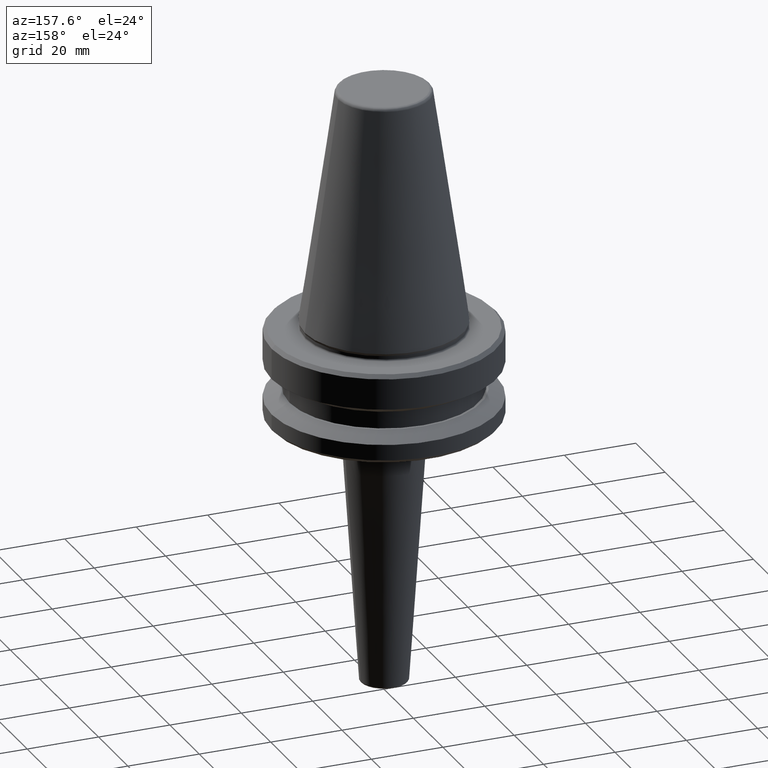
[diagram: clean part render]
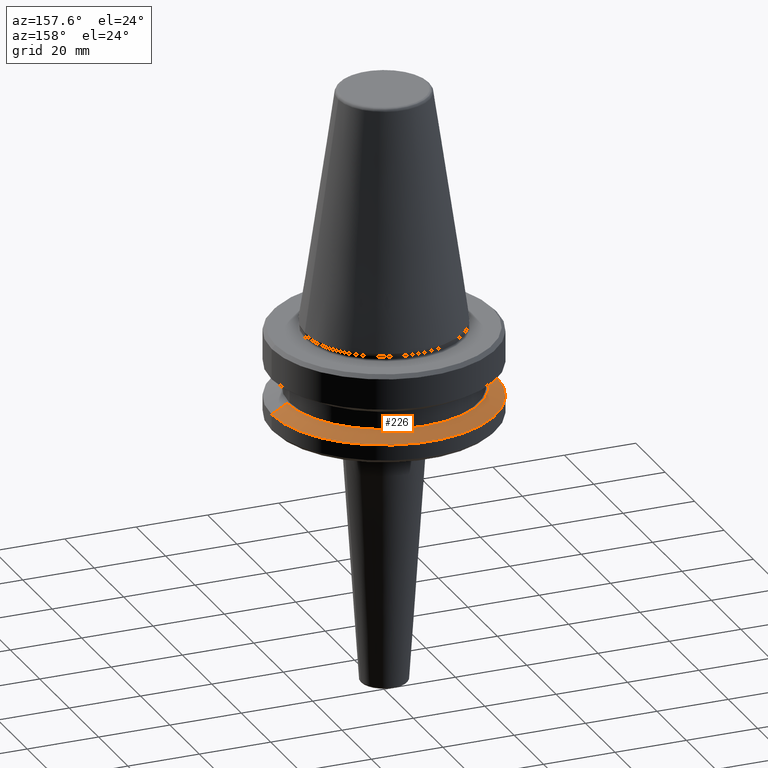
[diagram: same view with one face highlighted and labeled with its STEP entity id]
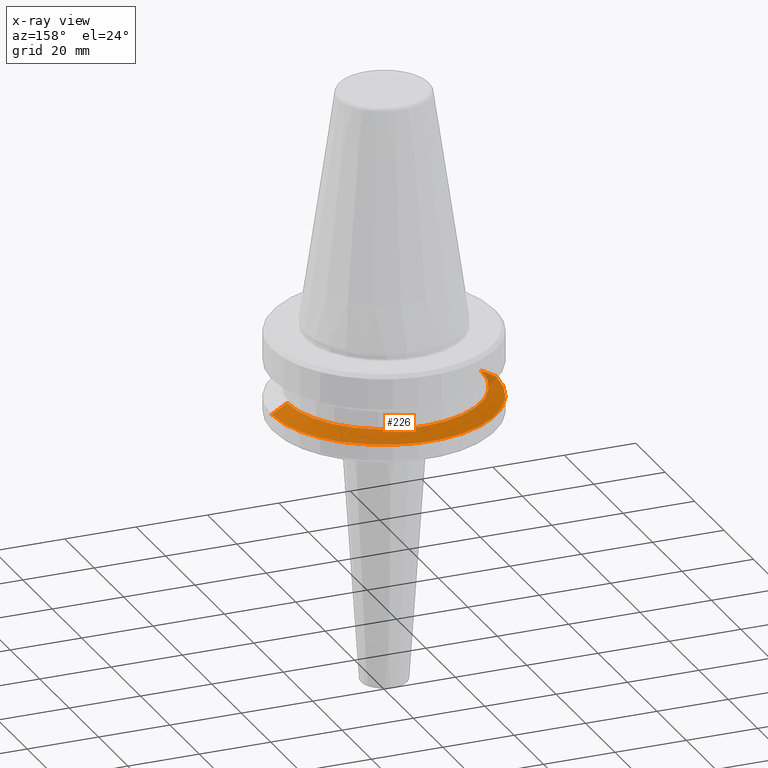
[diagram: x-ray of the same camera — body ghosted, the highlighted face saturated]
A machine part, auxiliary view. The second image highlights one B-rep face of the part: STEP entity #226.
The next image is the same camera in x-ray: the body ghosted, the highlighted face saturated — about 2% of this face is hidden behind the body in this view.
In plain terms, the highlighted conical surface has half-angle 60 deg.
Its self-contained STEP definition (entity closure, byte-faithful):
#1 = DIRECTION ( 'NONE',  ( 0.8660254037844332700, 1.060575238724900300E-016, -0.5000000000000093300 ) ) ;
#30 = CARTESIAN_POINT ( 'NONE',  ( 27.16962701892256100, 3.592478546794633900E-015, -84.50000000000068200 ) ) ;
#39 = CARTESIAN_POINT ( 'NONE',  ( -31.50000000000008500, 0.0000000000000000000, -87.00014200631733300 ) ) ;
#126 = AXIS2_PLACEMENT_3D ( 'NONE', #137, #591, #727 ) ;
#137 = CARTESIAN_POINT ( 'NONE',  ( 0.0000000000000000000, 0.0000000000000000000, -87.00014200631733300 ) ) ;
#139 = VERTEX_POINT ( 'NONE', #809 ) ;
#155 = CIRCLE ( 'NONE', #1035, 31.50000000000008500 ) ;
#159 = ORIENTED_EDGE ( 'NONE', *, *, #871, .F. ) ;
#226 = ADVANCED_FACE ( 'NONE', ( #943 ), #914, .T. ) ;
#307 = CIRCLE ( 'NONE', #788, 27.16962701892256100 ) ;
#309 = DIRECTION ( 'NONE',  ( 1.000000000000000000, 0.0000000000000000000, 0.0000000000000000000 ) ) ;
#378 = VECTOR ( 'NONE', #767, 1000.000000000000000 ) ;
#449 = DIRECTION ( 'NONE',  ( -0.0000000000000000000, -0.0000000000000000000, 1.000000000000000000 ) ) ;
#483 = CARTESIAN_POINT ( 'NONE',  ( 31.50000000000008500, 3.857637417314172900E-015, -87.00014200631733300 ) ) ;
#507 = VERTEX_POINT ( 'NONE', #30 ) ;
#546 = ORIENTED_EDGE ( 'NONE', *, *, #603, .F. ) ;
#553 = LINE ( 'NONE', #39, #378 ) ;
#591 = DIRECTION ( 'NONE',  ( 0.0000000000000000000, 0.0000000000000000000, -1.000000000000000000 ) ) ;
#603 = EDGE_CURVE ( 'NONE', #507, #139, #307, .T. ) ;
#671 = CARTESIAN_POINT ( 'NONE',  ( -31.50000000000008500, 3.857637417314172900E-015, -87.00014200631733300 ) ) ;
#676 = DIRECTION ( 'NONE',  ( 1.000000000000000000, 0.0000000000000000000, 0.0000000000000000000 ) ) ;
#705 = CARTESIAN_POINT ( 'NONE',  ( 0.0000000000000000000, 0.0000000000000000000, -87.00014200631733300 ) ) ;
#707 = VECTOR ( 'NONE', #1, 1000.000000000000000 ) ;
#727 = DIRECTION ( 'NONE',  ( -1.000000000000000000, 0.0000000000000000000, 0.0000000000000000000 ) ) ;
#734 = LINE ( 'NONE', #483, #707 ) ;
#739 = EDGE_CURVE ( 'NONE', #990, #936, #155, .T. ) ;
#750 = ORIENTED_EDGE ( 'NONE', *, *, #739, .T. ) ;
#753 = EDGE_LOOP ( 'NONE', ( #546, #847, #750, #159 ) ) ;
#767 = DIRECTION ( 'NONE',  ( -0.8660254037844332700, 0.0000000000000000000, -0.5000000000000093300 ) ) ;
#788 = AXIS2_PLACEMENT_3D ( 'NONE', #968, #449, #676 ) ;
#809 = CARTESIAN_POINT ( 'NONE',  ( -27.16962701892256100, 0.0000000000000000000, -84.50000000000068200 ) ) ;
#847 = ORIENTED_EDGE ( 'NONE', *, *, #1030, .T. ) ;
#856 = DIRECTION ( 'NONE',  ( -0.0000000000000000000, -0.0000000000000000000, 1.000000000000000000 ) ) ;
#871 = EDGE_CURVE ( 'NONE', #139, #936, #553, .T. ) ;
#892 = CARTESIAN_POINT ( 'NONE',  ( 31.50000000000008500, 0.0000000000000000000, -87.00014200631733300 ) ) ;
#914 = CONICAL_SURFACE ( 'NONE', #126, 31.50000000000008500, 1.047197551196587000 ) ;
#936 = VERTEX_POINT ( 'NONE', #671 ) ;
#943 = FACE_OUTER_BOUND ( 'NONE', #753, .T. ) ;
#968 = CARTESIAN_POINT ( 'NONE',  ( 0.0000000000000000000, 0.0000000000000000000, -84.50000000000068200 ) ) ;
#990 = VERTEX_POINT ( 'NONE', #892 ) ;
#1030 = EDGE_CURVE ( 'NONE', #507, #990, #734, .T. ) ;
#1035 = AXIS2_PLACEMENT_3D ( 'NONE', #705, #856, #309 ) ;